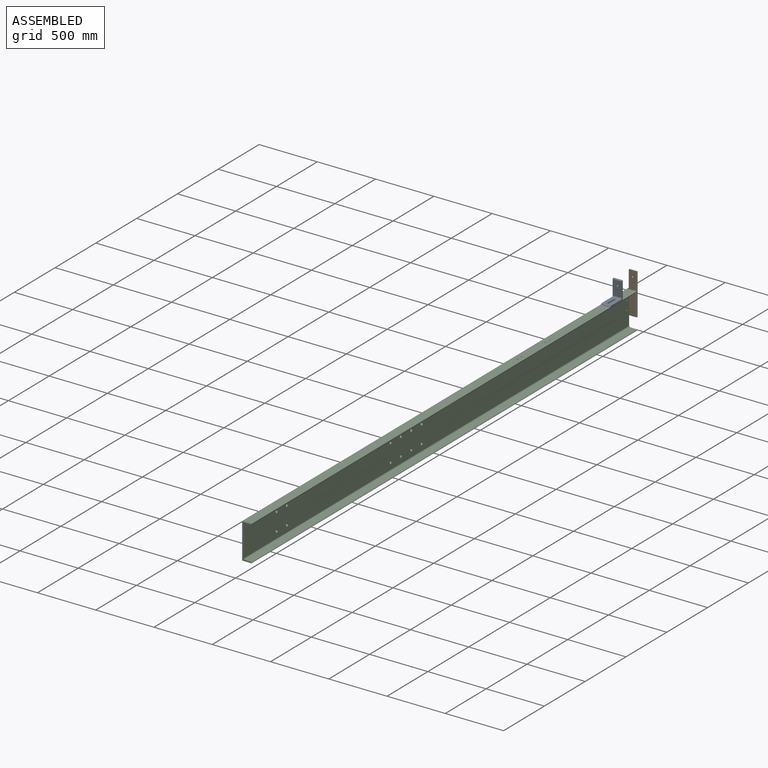
[diagram: assembled view]
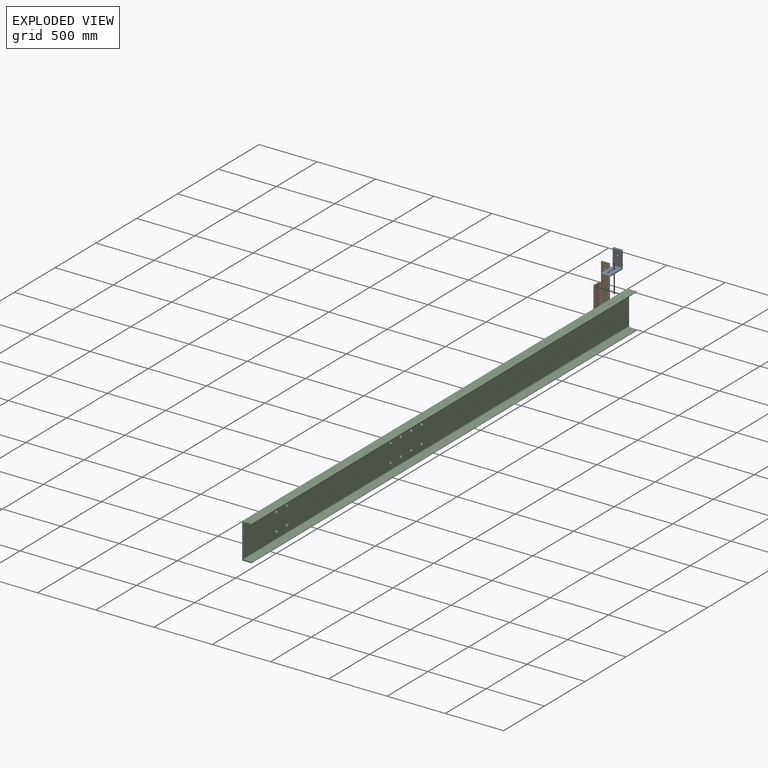
[diagram: exploded view]
GUIDED TOUR — MATED ASSEMBLY (Onshape document aad19290e8aba38c2cb87879, AutoMate assembly aad19290e8aba38c2cb87879_213f7252b88f9a71ab91ca13_c534218a211ea730c4ecf712_default)

This assembly has 3 components, labeled P0..P2 below (a component is one placed occurrence of a part; the same part can appear more than once), held together by 3 mates. A mate is a constraint between two components; its type names the relative motion it leaves free:
  CYLINDRICAL — leaves both rotation about and translation along the listed axis free,
  PLANAR — leaves sliding in the plane through the listed point (normal = the listed direction) and rotation about that normal free.
Axis/direction vectors are unit vectors and 'through' points are millimeter coordinates, both in the assembly's world frame.

MATES
  1. CYLINDRICAL "Cylindrical 1": P1 <-> P2, axis (1.000, 0.000, 0.000) through (-40.27, 2334.12, 228.60) mm
  2. PLANAR "Planar 1": P0 <-> P2, direction (0.000, 0.000, -1.000) through (-7.72, 2146.60, 304.80) mm
  3. PLANAR "Planar 2": P0 <-> P2, direction (-1.000, 0.000, 0.000) through (-40.27, 2147.76, 345.71) mm

ASSEMBLY ORDER
  1. P2 — the base component [order verified]
  2. P0 [order verified]
  3. P1 [order verified]
Order-tag legend:
  [order verified] — this step's position reverses a verified removal order: the component was checked to insert without passing through the ones already placed.

Of the 3 components, 2 carry the full construction recipe — the FeatureScript program that regenerates the part's solid from scratch; the rest are supplied as boundary geometry only.
Each toured component is shown spotlighted twice — in the assembled view, then in the exploded view, where a leader line traces a displaced component back to its assembled socket (saturated green if recipe-attached, orange if geometry-only; every other component desaturated gray) — followed by its recipe or geometry summary and the mates that hold it.
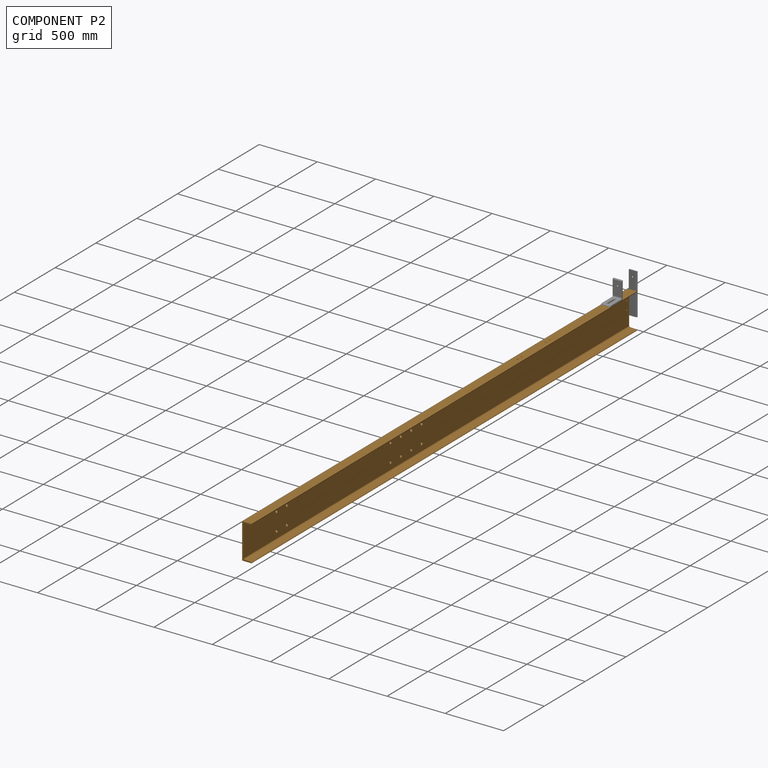
[diagram: component P2 — assembled]
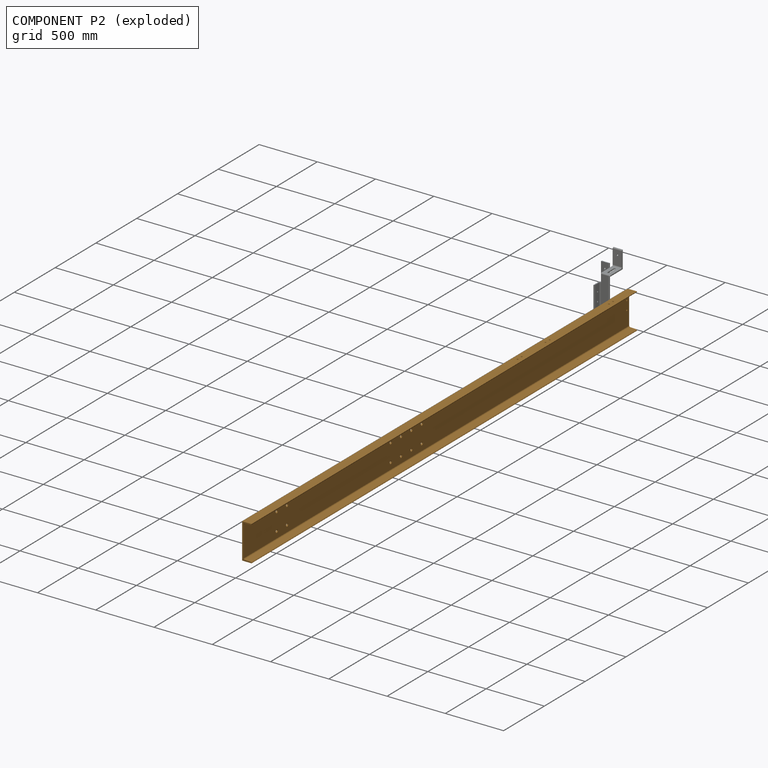
[diagram: component P2 — exploded]
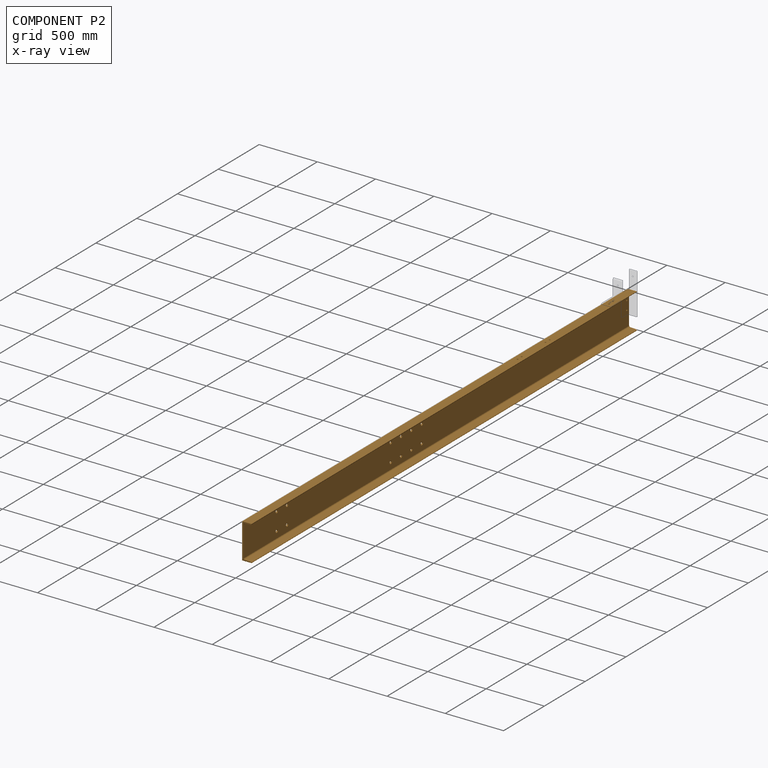
[diagram: component P2 — x-ray view]
COMPONENT P2 — geometry summary (no construction recipe available for this part):
  bounding box: 4724.4 x 304.8 x 80.5 mm
  B-rep topology: 1 solid, 33 faces, 214 edges
  volume: 25382680 mm^3 (22% of its bounding box)
  symmetry: 2-fold rotationally symmetric about the x axis; mirror-symmetric across its y mid-plane, z mid-plane
Held by: CYLINDRICAL mate "Cylindrical 1" to P1; PLANAR mate "Planar 1" to P0; PLANAR mate "Planar 2" to P0.
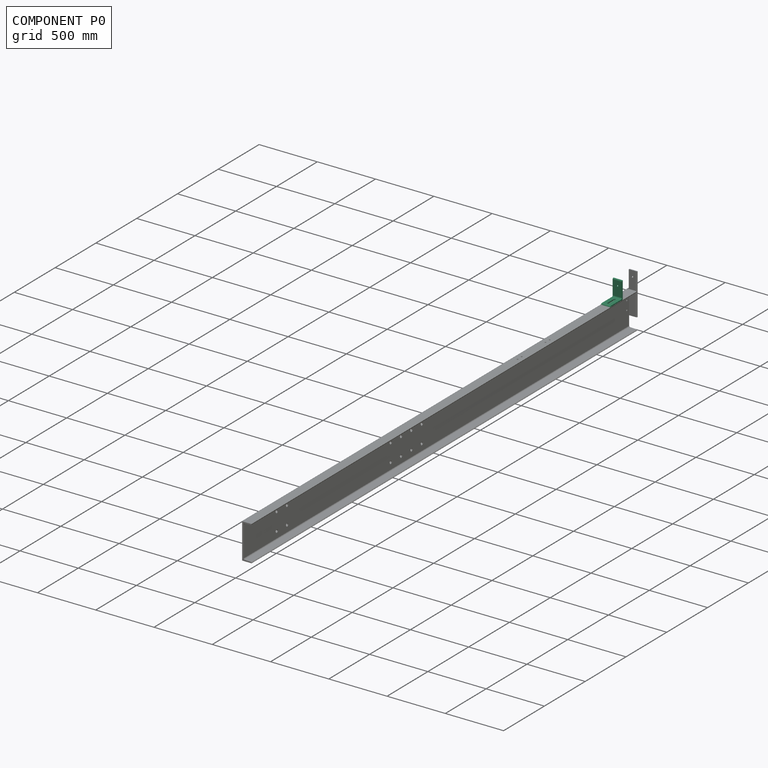
[diagram: component P0 — assembled]
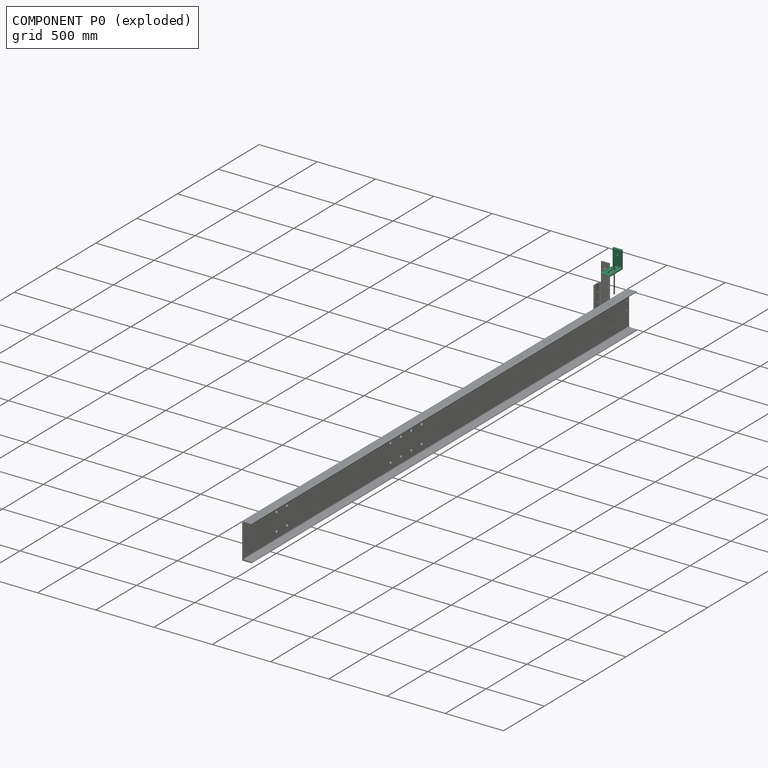
[diagram: component P0 — exploded]
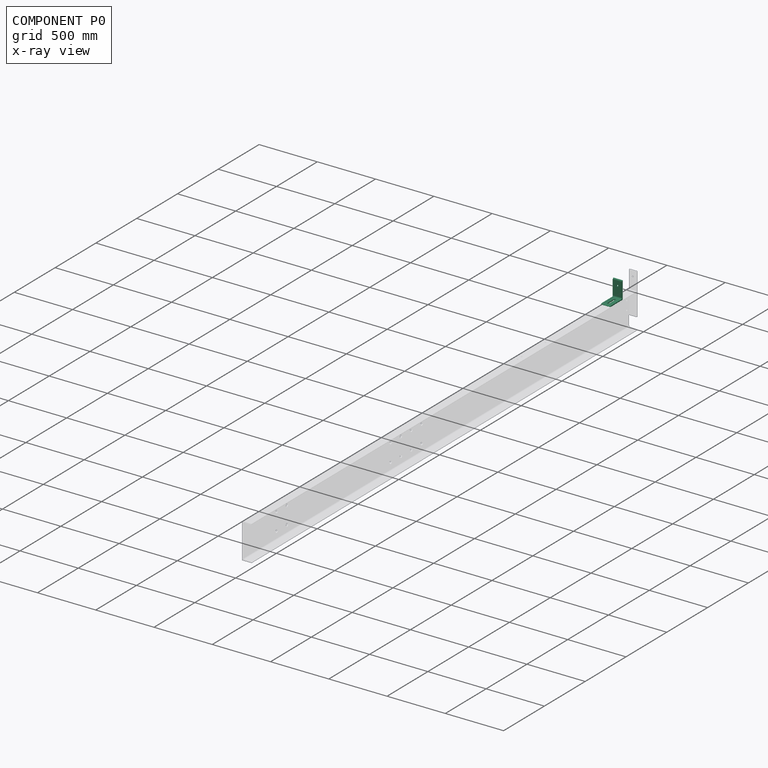
[diagram: component P0 — x-ray view]
COMPONENT P0 — recipe-attached (CADFS 00915724, mesh-verified: the recipe's output STEP matches this component's geometry to below the mesh-comparison resolution (tessellation chordal tolerance ~0.345 mm)).
Held by: PLANAR mate "Planar 1" to P2; PLANAR mate "Planar 2" to P2.
Construction recipe (FeatureScript — the CAD program that rebuilds this solid; sketch coordinates are in the units given by the * unit suffixes, e.g. mm):

FeatureScript 2045;
import(path : "onshape/std/geometry.fs", version : "2045.0");
import(path : "onshape/std/common.fs", version : "2045.0");
const mm = millimeter;
const VERTEX = EntityType.VERTEX;
const EDGE = EntityType.EDGE;
const FACE = EntityType.FACE;
const BODY = EntityType.BODY;
function v(x, y){return vector(x, y);}
function OD(order){return orderDisambiguation(order);}
function OSD(set){return originalSetDisambiguation(set);}
function TD(topology){return topologyDisambiguation(topology);}
function TDD(query){return trueDependencyDisambiguation(query);}
function sQuery(a, b, c) {return sketchEntityQuery(a, b, c);}

annotation { "Feature Type Name" : "Feature", "Feature Type Description" : "" }
export const myFeature = defineFeature(function(context is Context, id is Id, definition is map)
    precondition{}
    {
        {
            var Q0;
            Q0=qCreatedBy(makeId("Right.planeOp"),FACE);
            var sketch = newSketch(context, id + "F0", { "sketchPlane" : qUnion([Q0])});
            skLineSegment(sketch, "E0", {"start": v(0, 152.4) * mm, "end": v(0, 0) * mm});
            skLineSegment(sketch, "E1", {"start": v(0, 0) * mm, "end": v(-152.4, 0) * mm});
            skLineSegment(sketch, "E2", {"start": v(-152.4, 0) * mm, "end": v(-152.4, 0) * mm});
            skLineSegment(sketch, "E3", {"start": v(-142.88, 9.52) * mm, "end": v(-19.05, 9.53) * mm});
            skLineSegment(sketch, "E4", {"start": v(-9.52, 19.05) * mm, "end": v(-9.52, 142.88) * mm});
            skLineSegment(sketch, "E5", {"start": v(0, 152.4) * mm, "end": v(0, 152.4) * mm});
            skPoint(sketch, "E6.visualSharp", {"position": v(-9.52, 152.4) * mm});
            skArc(sketch, "E6.filletArc", {"start": v(0, 152.4) * mm, "mid": v(-6.74, 149.61) * mm, "end": v(-9.53, 142.88) * mm});
            skPoint(sketch, "E7.visualSharp", {"position": v(-152.4, 9.52) * mm});
            skArc(sketch, "E7.filletArc", {"start": v(-142.88, 9.52) * mm, "mid": v(-149.61, 6.74) * mm, "end": v(-152.4, 0) * mm});
            skPoint(sketch, "E8.visualSharp", {"position": v(-9.53, 9.53) * mm});
            skArc(sketch, "E8.filletArc", {"start": v(-19.05, 9.53) * mm, "mid": v(-12.31, 12.31) * mm, "end": v(-9.52, 19.05) * mm});
            skSolve(sketch);
        }
        {
            var Q0;
            Q0=qSketchRegion(id+"F0",true);
            extrude(context, id + "F1", {"entities" : qUnion([Q0]), "depth" : 79.38 * mm, "offsetDistance" : 25.4 * mm, "symmetric" : true});
        }
        {
            var Q0;
            Q0=makeQuery(id+"F1.opExtrude","SWEPT_FACE",FACE,{"disambiguationData":[OSD([sQuery(id+"F0.wireOp",EDGE,"E0")])]});
            var sketch = newSketch(context, id + "F2", { "sketchPlane" : qUnion([Q0])});
            skCircle(sketch, "E9", {"center": v(0, 101.6) * mm, "radius": 6.35 * mm});
            skSolve(sketch);
        }
        {
            var Q0;
            Q0=qSketchRegion(id+"F2",true);
            extrude(context, id + "F3", {"entities" : qUnion([Q0]), "operationType" : NewBodyOperationType.REMOVE, "oppositeDirection" : true, "depth" : 25.4 * mm, "offsetDistance" : 25.4 * mm});
        }
        {
            var Q0;
            Q0=makeQuery(id+"F1.opExtrude","SWEPT_FACE",FACE,{"disambiguationData":[OSD([sQuery(id+"F0.wireOp",EDGE,"E1")])]});
            var sketch = newSketch(context, id + "F4", { "sketchPlane" : qUnion([Q0])});
            skLineSegment(sketch, "E10.bottom", {"start": v(7.14, 119.86) * mm, "end": v(-7.14, 119.86) * mm});
            skLineSegment(sketch, "E10.top", {"start": v(7.14, 42.07) * mm, "end": v(-7.14, 42.07) * mm});
            skLineSegment(sketch, "E10.left", {"start": v(7.14, 119.86) * mm, "end": v(7.14, 42.07) * mm});
            skLineSegment(sketch, "E10.right", {"start": v(-7.14, 119.86) * mm, "end": v(-7.14, 42.07) * mm});
            skPoint(sketch, "E10.middle", {"position": v(0, 80.96) * mm});
            skArc(sketch, "E11", {"start": v(-7.14, 42.07) * mm, "mid": v(0, 34.92) * mm, "end": v(7.14, 42.07) * mm});
            skArc(sketch, "E12", {"start": v(7.14, 119.86) * mm, "mid": v(0, 127) * mm, "end": v(-7.14, 119.86) * mm});
            skPoint(sketch, "E13", {"position": v(0, 152.4) * mm});
            skPoint(sketch, "E14", {"position": v(0, 127) * mm});
            skPoint(sketch, "E15", {"position": v(0, 34.92) * mm});
            skSolve(sketch);
        }
        {
            var Q0;
            Q0=qSketchRegion(id+"F4",true);
            extrude(context, id + "F5", {"entities" : qUnion([Q0]), "operationType" : NewBodyOperationType.REMOVE, "oppositeDirection" : true, "depth" : 25.4 * mm, "offsetDistance" : 25.4 * mm});
        }
    });
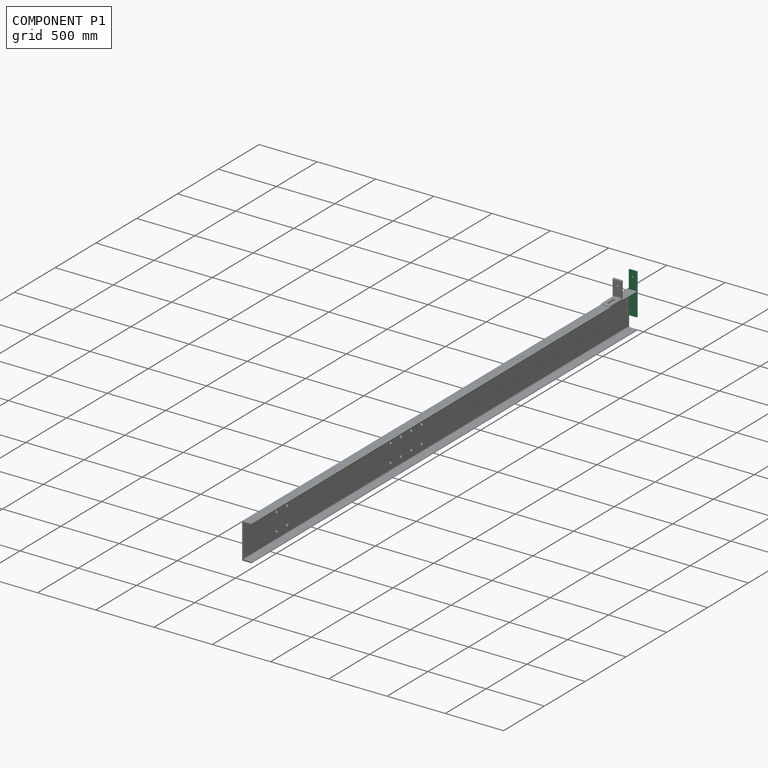
[diagram: component P1 — assembled]
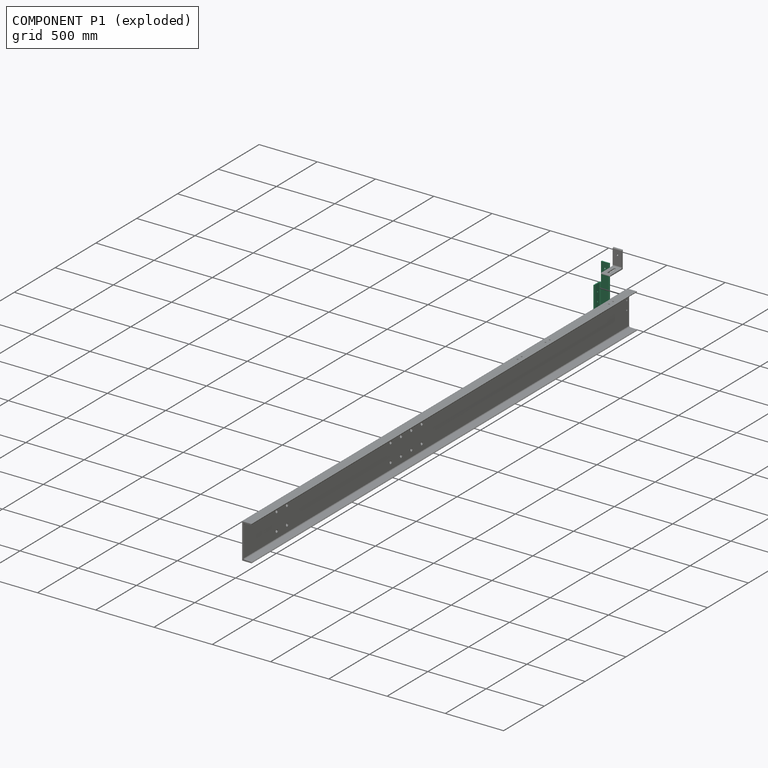
[diagram: component P1 — exploded]
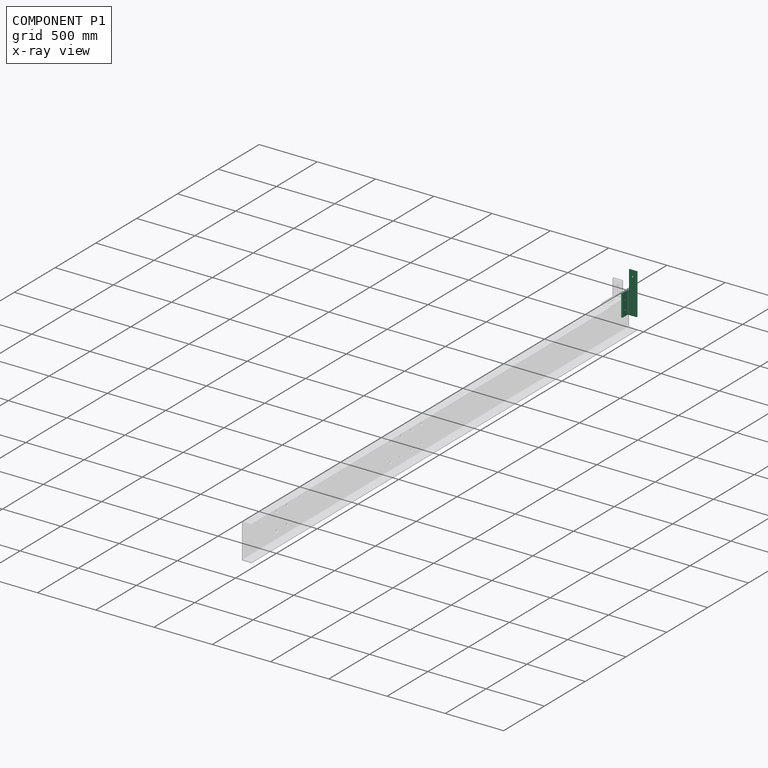
[diagram: component P1 — x-ray view]
COMPONENT P1 — recipe-attached (CADFS 00915725, mesh-verified: the recipe's output STEP matches this component's geometry to below the mesh-comparison resolution (tessellation chordal tolerance ~0.562 mm)).
Held by: CYLINDRICAL mate "Cylindrical 1" to P2.
Construction recipe (FeatureScript — the CAD program that rebuilds this solid; sketch coordinates are in the units given by the * unit suffixes, e.g. mm):

FeatureScript 2045;
import(path : "onshape/std/geometry.fs", version : "2045.0");
import(path : "onshape/std/common.fs", version : "2045.0");
const mm = millimeter;
const VERTEX = EntityType.VERTEX;
const EDGE = EntityType.EDGE;
const FACE = EntityType.FACE;
const BODY = EntityType.BODY;
function v(x, y){return vector(x, y);}
function OD(order){return orderDisambiguation(order);}
function OSD(set){return originalSetDisambiguation(set);}
function TD(topology){return topologyDisambiguation(topology);}
function TDD(query){return trueDependencyDisambiguation(query);}
function sQuery(a, b, c) {return sketchEntityQuery(a, b, c);}

annotation { "Feature Type Name" : "Feature", "Feature Type Description" : "" }
export const myFeature = defineFeature(function(context is Context, id is Id, definition is map)
    precondition{}
    {
        {
            var Q0;
            Q0=qCreatedBy(makeId("Right.planeOp"),FACE);
            var sketch = newSketch(context, id + "F0", { "sketchPlane" : qUnion([Q0])});
            skLineSegment(sketch, "E0", {"start": v(0, 76.2) * mm, "end": v(0, 0) * mm});
            skLineSegment(sketch, "E1", {"start": v(0, 0) * mm, "end": v(-88.9, 0) * mm});
            skLineSegment(sketch, "E2", {"start": v(-88.9, 0) * mm, "end": v(-88.9, 0) * mm});
            skLineSegment(sketch, "E3", {"start": v(-79.38, 9.53) * mm, "end": v(-19.05, 9.53) * mm});
            skLineSegment(sketch, "E4", {"start": v(-9.52, 19.05) * mm, "end": v(-9.52, 66.67) * mm});
            skLineSegment(sketch, "E5", {"start": v(0, 76.2) * mm, "end": v(0, 76.2) * mm});
            skPoint(sketch, "E6.visualSharp", {"position": v(-9.52, 76.2) * mm});
            skArc(sketch, "E6.filletArc", {"start": v(0, 76.2) * mm, "mid": v(-6.74, 73.41) * mm, "end": v(-9.52, 66.67) * mm});
            skPoint(sketch, "E7.visualSharp", {"position": v(-88.9, 9.52) * mm});
            skArc(sketch, "E7.filletArc", {"start": v(-79.38, 9.53) * mm, "mid": v(-86.11, 6.74) * mm, "end": v(-88.9, 0) * mm});
            skPoint(sketch, "E8.visualSharp", {"position": v(-9.53, 9.53) * mm});
            skArc(sketch, "E8.filletArc", {"start": v(-19.05, 9.53) * mm, "mid": v(-12.31, 12.31) * mm, "end": v(-9.52, 19.05) * mm});
            skSolve(sketch);
        }
        {
            var Q0;
            Q0=qSketchRegion(id+"F0",true);
            extrude(context, id + "F1", {"entities" : qUnion([Q0]), "depth" : 355.6 * mm, "offsetDistance" : 25.4 * mm, "symmetric" : true});
        }
        {
            var Q0;
            Q0=makeQuery(id+"F1.opExtrude","SWEPT_FACE",FACE,{"disambiguationData":[OSD([sQuery(id+"F0.wireOp",EDGE,"E0")])]});
            var sketch = newSketch(context, id + "F2", { "sketchPlane" : qUnion([Q0])});
            skCircle(sketch, "E9", {"center": v(127, 38.1) * mm, "radius": 6.35 * mm});
            skPoint(sketch, "E9.centerSnap0", {"position": v(177.8, 38.1) * mm});
            skCircle(sketch, "E10", {"center": v(50.8, 38.1) * mm, "radius": 6.35 * mm});
            skSolve(sketch);
        }
        {
            var Q0;
            Q0 = qSketchRegion(id + "F2", true);
            extrude(context, id + "F3", {"entities" : qUnion([Q0]), "operationType" : NewBodyOperationType.REMOVE, "oppositeDirection" : true, "depth" : 25.4 * mm, "offsetDistance" : 25.4 * mm});
        }
        {
            var Q0;
            Q0=makeQuery(id+"F1.opExtrude","SWEPT_FACE",FACE,{"disambiguationData":[OSD([sQuery(id+"F0.wireOp",EDGE,"E1")])]});
            var sketch = newSketch(context, id + "F4", { "sketchPlane" : qUnion([Q0])});
            skLineSegment(sketch, "E11.bottom", {"start": v(177.8, 0) * mm, "end": v(12.7, 0) * mm});
            skLineSegment(sketch, "E11.top", {"start": v(177.8, 19.05) * mm, "end": v(12.7, 19.05) * mm});
            skLineSegment(sketch, "E11.left", {"start": v(177.8, 0) * mm, "end": v(177.8, 19.05) * mm});
            skLineSegment(sketch, "E11.right", {"start": v(12.7, 0) * mm, "end": v(12.7, 19.05) * mm});
            skSolve(sketch);
        }
        {
            var Q0;
            Q0 = qSketchRegion(id + "F4", true);
            extrude(context, id + "F5", {"entities" : qUnion([Q0]), "operationType" : NewBodyOperationType.REMOVE, "endBound" : BoundingType.THROUGH_ALL, "oppositeDirection" : true, "depth" : 25.4 * mm, "offsetDistance" : 25.4 * mm});
        }
        {
            var Q0;
            Q0=makeQuery(id+"F1.opExtrude","SWEPT_FACE",FACE,{"disambiguationData":[OSD([sQuery(id+"F0.wireOp",EDGE,"E1")])]});
            var sketch = newSketch(context, id + "F6", { "sketchPlane" : qUnion([Q0])});
            skCircle(sketch, "E12", {"center": v(127, 49.21) * mm, "radius": 6.35 * mm});
            skPoint(sketch, "E12.centerSnap0", {"position": v(177.8, 53.97) * mm});
            skLineSegment(sketch, "E13", {"start": v(12.7, 19.05) * mm, "end": v(12.7, 9.52) * mm});
            skSolve(sketch);
        }
        {
            var Q0;
            Q0 = qSketchRegion(id + "F6", true);
            extrude(context, id + "F7", {"entities" : qUnion([Q0]), "operationType" : NewBodyOperationType.REMOVE, "oppositeDirection" : true, "depth" : 25.4 * mm, "offsetDistance" : 25.4 * mm});
        }
    });
PROVENANCE & LICENSES
Assembly (occurrences, transforms, mates, per-part STEP geometry): AutoMate dataset, Zenodo record 7776208, CC0.
Construction recipes: CADFS (HuggingFace VladPyatov/CADFS, CC-BY-4.0, layered over the ABC dataset), FeatureScript reconstruction programs keyed by ABC model id.
Join: ABC meta listings map ABC model id -> Onshape documentId; within a shared document, parts are matched by geometric signature (bounding-box dims + volume at 0.1% relative tolerance, exact B-rep face/solid counts).
Verification: 2 of this assembly's 3 components carry a recipe attachment, and every attachment is mesh-verified: the CADFS STEP and the AutoMate member STEP were compared as meshes in their shared local frame (symmetric sampled-point-to-mesh distance); worst across the 2 attachments: below the mesh-comparison resolution (tessellation chordal tolerance ~0.562 mm) on a 374 mm part.
Renders: orthographic iso camera (az 35 / el 25); the floor grid conveys scale (grid pitch printed in each image; no ruler). In the exploded view each component is displaced by its stored offset vector: the offsets alone carry the explosion direction (mate normal/axis signs are not orientation cues and do not encode it), and separation distances are assigned per mate-chain, not proportionally to assembly-order depth.
